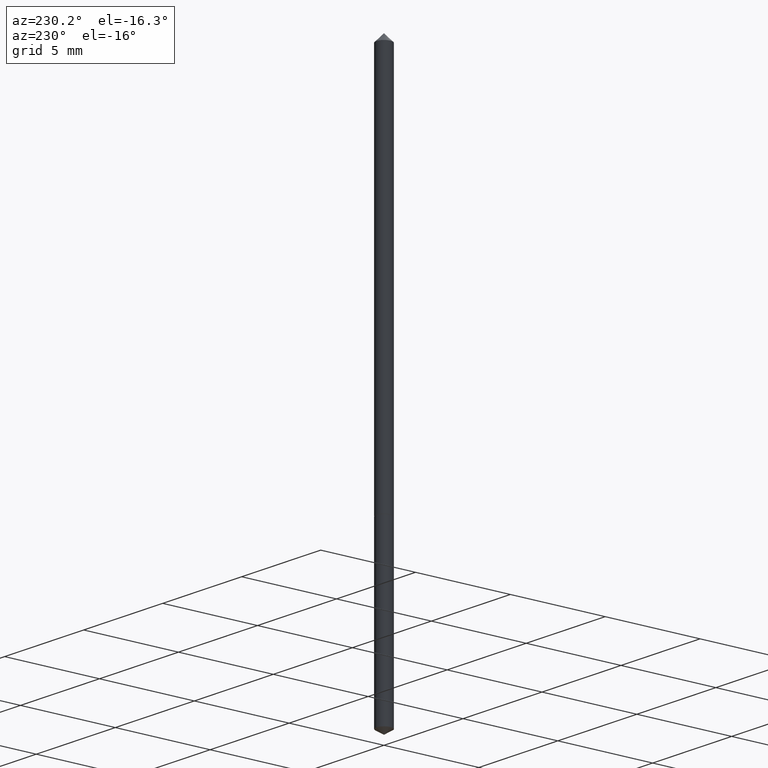
[diagram: clean part render]
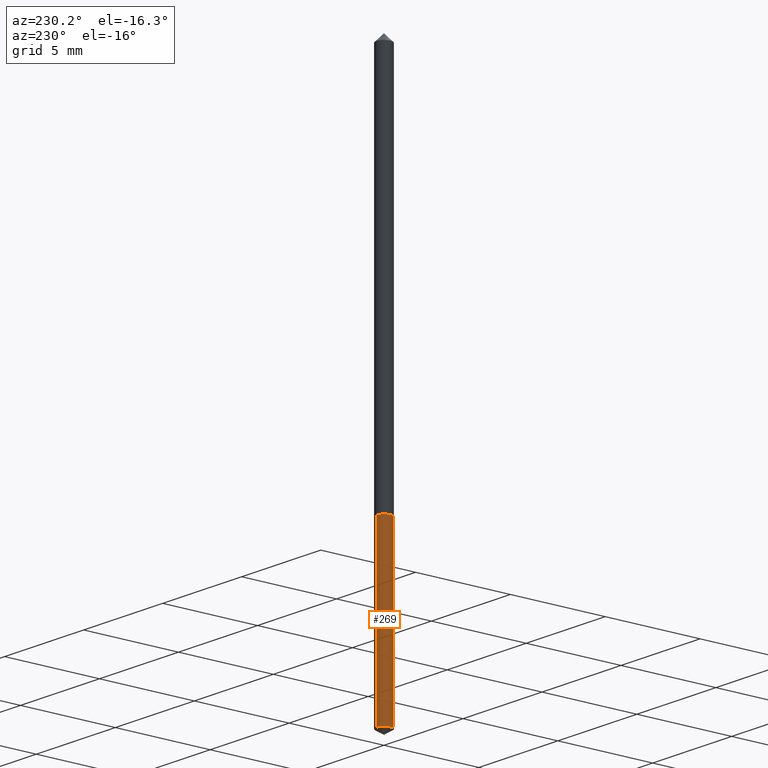
[diagram: same view with one face highlighted and labeled with its STEP entity id]
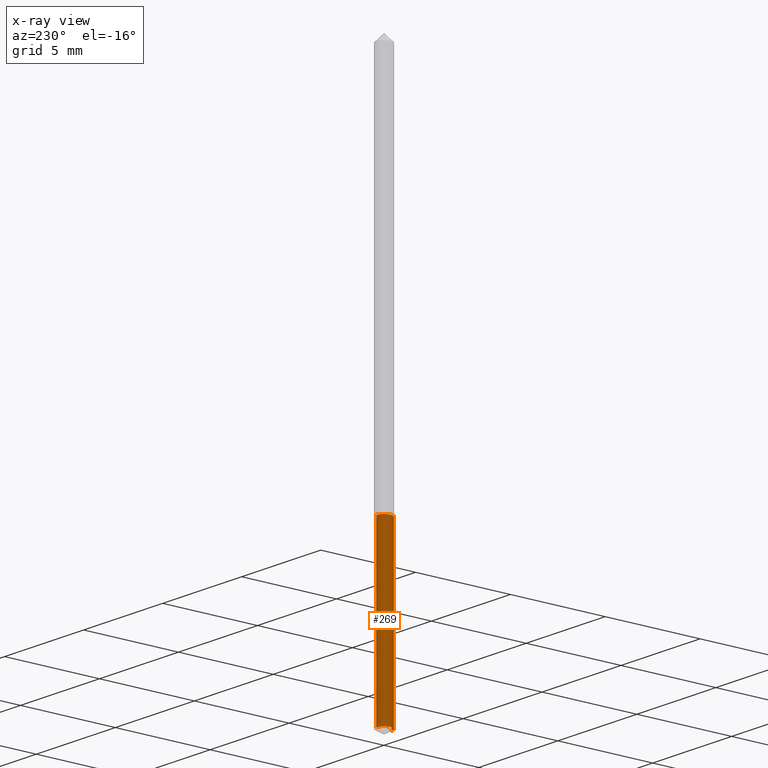
[diagram: x-ray of the same camera — body ghosted, the highlighted face saturated]
A machine part, auxiliary view. The second image highlights one B-rep face of the part: STEP entity #269.
The next image is the same camera in x-ray: the body ghosted, the highlighted face saturated — about 0% of this face is hidden behind the body in this view.
In plain terms, the highlighted cylindrical surface (edge-blend (fillet) strip) has radius 0.4 mm, axis along (-0, 0, 1).
Its self-contained STEP definition (entity closure, byte-faithful):
#9 = DIRECTION ( 'NONE',  ( -6.982962677686265922E-15, -1.000000000000000000, 0.000000000000000000 ) ) ;
#19 = AXIS2_PLACEMENT_3D ( 'NONE', #334, #286, #91 ) ;
#20 = EDGE_CURVE ( 'NONE', #229, #84, #152, .T. ) ;
#29 = FACE_OUTER_BOUND ( 'NONE', #357, .T. ) ;
#32 = VECTOR ( 'NONE', #277, 39.37007874015748143 ) ;
#56 = CARTESIAN_POINT ( 'NONE',  ( -1.099816621735386641E-16, -0.01575000000000285894, -0.8189000000000000723 ) ) ;
#62 = AXIS2_PLACEMENT_3D ( 'NONE', #146, #253, #201 ) ;
#81 = ORIENTED_EDGE ( 'NONE', *, *, #20, .T. ) ;
#84 = VERTEX_POINT ( 'NONE', #254 ) ;
#91 = DIRECTION ( 'NONE',  ( -6.982962677686265922E-15, -1.000000000000000000, 0.000000000000000000 ) ) ;
#95 = CYLINDRICAL_SURFACE ( 'NONE', #19, 0.01575000000000000011 ) ;
#110 = ORIENTED_EDGE ( 'NONE', *, *, #184, .T. ) ;
#121 = VECTOR ( 'NONE', #300, 39.37007874015748143 ) ;
#125 = EDGE_CURVE ( 'NONE', #247, #84, #191, .T. ) ;
#133 = EDGE_CURVE ( 'NONE', #223, #247, #249, .T. ) ;
#136 = ORIENTED_EDGE ( 'NONE', *, *, #133, .F. ) ;
#142 = CARTESIAN_POINT ( 'NONE',  ( -1.099816621735300853E-16, -0.01575000000000409753, -1.171636445250316072 ) ) ;
#146 = CARTESIAN_POINT ( 'NONE',  ( 2.002594405385008597E-29, -2.859174068378652141E-15, -0.8189000000000000723 ) ) ;
#152 = LINE ( 'NONE', #56, #121 ) ;
#181 = CARTESIAN_POINT ( 'NONE',  ( 1.119104808822444749E-16, 0.01574999999999714129, -0.8189000000000000723 ) ) ;
#184 = EDGE_CURVE ( 'NONE', #223, #229, #244, .T. ) ;
#191 = CIRCLE ( 'NONE', #62, 0.01575000000000000011 ) ;
#201 = DIRECTION ( 'NONE',  ( -6.982962677686265922E-15, -1.000000000000000000, 0.000000000000000000 ) ) ;
#223 = VERTEX_POINT ( 'NONE', #245 ) ;
#229 = VERTEX_POINT ( 'NONE', #142 ) ;
#244 = CIRCLE ( 'NONE', #292, 0.01575000000000000011 ) ;
#245 = CARTESIAN_POINT ( 'NONE',  ( 1.119104808822444502E-16, 0.01574999999999591310, -1.171636445250316072 ) ) ;
#247 = VERTEX_POINT ( 'NONE', #181 ) ;
#249 = LINE ( 'NONE', #299, #32 ) ;
#253 = DIRECTION ( 'NONE',  ( -2.445331127242013945E-29, 3.491678502925895988E-15, 1.000000000000000000 ) ) ;
#254 = CARTESIAN_POINT ( 'NONE',  ( -1.099816621735386641E-16, -0.01575000000000285894, -0.8189000000000000723 ) ) ;
#269 = ADVANCED_FACE ( 'NONE', ( #29 ), #95, .T. ) ;
#277 = DIRECTION ( 'NONE',  ( -2.445331127242013945E-29, 3.491678502925895988E-15, 1.000000000000000000 ) ) ;
#282 = DIRECTION ( 'NONE',  ( -2.445331127242013945E-29, 3.491678502925895988E-15, 1.000000000000000000 ) ) ;
#284 = ORIENTED_EDGE ( 'NONE', *, *, #125, .F. ) ;
#286 = DIRECTION ( 'NONE',  ( -2.445331127242013945E-29, 3.491678502925895988E-15, 1.000000000000000000 ) ) ;
#292 = AXIS2_PLACEMENT_3D ( 'NONE', #327, #282, #9 ) ;
#299 = CARTESIAN_POINT ( 'NONE',  ( 1.119104808822357974E-16, 0.01574999999999714129, -0.8189000000000000723 ) ) ;
#300 = DIRECTION ( 'NONE',  ( -2.445331127242013945E-29, 3.491678502925895988E-15, 1.000000000000000000 ) ) ;
#327 = CARTESIAN_POINT ( 'NONE',  ( 2.865151814668304796E-29, -4.090816331457678036E-15, -1.171636445250316072 ) ) ;
#334 = CARTESIAN_POINT ( 'NONE',  ( 2.002594405385008597E-29, -2.859174068378652141E-15, -0.8189000000000000723 ) ) ;
#357 = EDGE_LOOP ( 'NONE', ( #136, #110, #81, #284 ) ) ;